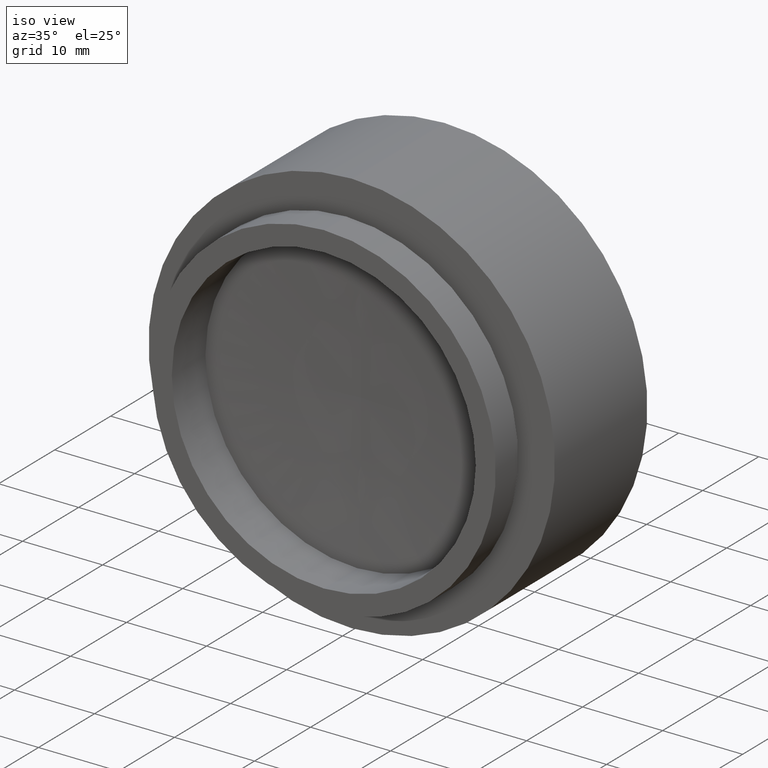
[diagram: clean part render]
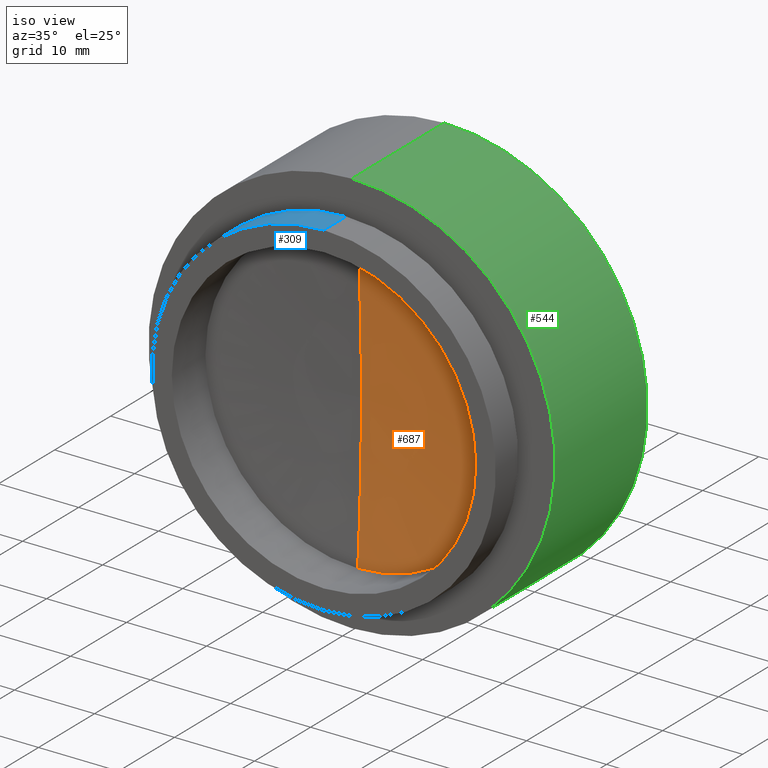
[diagram: same view with three faces highlighted in distinct colors, each labeled with its STEP entity id]
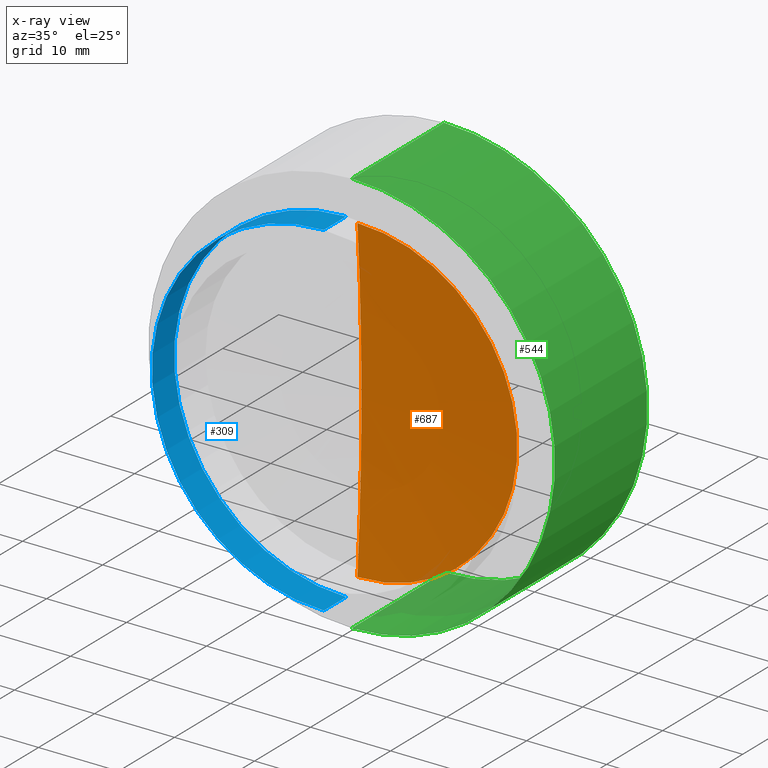
[diagram: x-ray of the same camera — body ghosted, the three highlighted faces saturated]
A machine part, iso view with three faces highlighted in distinct colors.
The next image is the same camera in x-ray (body ghosted, the three faces saturated) — at least one of them is partly hidden behind the body in this view.
Their STEP definitions:

[orange] entity #687 — the highlighted spherical surface has radius 275.373 mm.
#62 = CIRCLE ( 'NONE', #602, 275.3729999999999905 ) ;
#215 = DIRECTION ( 'NONE',  ( 1.224646799147353207E-16, -1.000000000000000000, 0.000000000000000000 ) ) ;
#232 = DIRECTION ( 'NONE',  ( 0.000000000000000000, 0.000000000000000000, -1.000000000000000000 ) ) ;
#271 = EDGE_CURVE ( 'NONE', #424, #716, #62, .T. ) ;
#419 = SPHERICAL_SURFACE ( 'NONE', #726, 275.3729999999999905 ) ;
#424 = VERTEX_POINT ( 'NONE', #685 ) ;
#486 = DIRECTION ( 'NONE',  ( -1.224646799147353207E-16, 1.000000000000000000, 0.000000000000000000 ) ) ;
#499 = ORIENTED_EDGE ( 'NONE', *, *, #552, .F. ) ;
#534 = DIRECTION ( 'NONE',  ( -1.000000000000000000, -1.224646799147353207E-16, -1.224646799147351975E-16 ) ) ;
#552 = EDGE_CURVE ( 'NONE', #424, #716, #1205, .T. ) ;
#602 = AXIS2_PLACEMENT_3D ( 'NONE', #1061, #534, #749 ) ;
#622 = CARTESIAN_POINT ( 'NONE',  ( -8.905217641199632439, -18.91880613057825400, 6.650363943474537187 ) ) ;
#684 = DIRECTION ( 'NONE',  ( 0.000000000000000000, 0.000000000000000000, 1.000000000000000000 ) ) ;
#685 = CARTESIAN_POINT ( 'NONE',  ( -8.905217641199635992, -18.91880613057825400, 46.65036394347453808 ) ) ;
#687 = ADVANCED_FACE ( 'NONE', ( #1130 ), #419, .F. ) ;
#716 = VERTEX_POINT ( 'NONE', #622 ) ;
#726 = AXIS2_PLACEMENT_3D ( 'NONE', #1035, #215, #232 ) ;
#749 = DIRECTION ( 'NONE',  ( 1.196912770807571307E-16, 0.000000000000000000, -1.000000000000000000 ) ) ;
#800 = CARTESIAN_POINT ( 'NONE',  ( -8.905217641199635992, -18.91880613057825400, 26.65036394347453808 ) ) ;
#1035 = CARTESIAN_POINT ( 'NONE',  ( -8.905217641199602241, -293.5645581985831996, 26.65036394347453808 ) ) ;
#1061 = CARTESIAN_POINT ( 'NONE',  ( -8.905217641199602241, -293.5645581985831996, 26.65036394347453808 ) ) ;
#1130 = FACE_OUTER_BOUND ( 'NONE', #1144, .T. ) ;
#1144 = EDGE_LOOP ( 'NONE', ( #499, #1197 ) ) ;
#1183 = AXIS2_PLACEMENT_3D ( 'NONE', #800, #486, #684 ) ;
#1197 = ORIENTED_EDGE ( 'NONE', *, *, #271, .T. ) ;
#1205 = CIRCLE ( 'NONE', #1183, 19.99999999999999645 ) ;

[blue] entity #309 — the highlighted cylindrical surface (partial cylindrical patch) has radius 21.5 mm, axis along (0, -1, 0).
#1 = ORIENTED_EDGE ( 'NONE', *, *, #1146, .T. ) ;
#28 = ORIENTED_EDGE ( 'NONE', *, *, #745, .F. ) ;
#48 = VERTEX_POINT ( 'NONE', #302 ) ;
#50 = DIRECTION ( 'NONE',  ( 0.000000000000000000, -1.000000000000000000, 0.000000000000000000 ) ) ;
#128 = ORIENTED_EDGE ( 'NONE', *, *, #1014, .T. ) ;
#139 = DIRECTION ( 'NONE',  ( 0.000000000000000000, -1.000000000000000000, 0.000000000000000000 ) ) ;
#240 = CARTESIAN_POINT ( 'NONE',  ( -8.905217641199669742, -24.91880613057825045, 26.65036394347453097 ) ) ;
#302 = CARTESIAN_POINT ( 'NONE',  ( -8.905217641199666190, -24.91880613057825045, 48.15036394347453097 ) ) ;
#309 = ADVANCED_FACE ( 'NONE', ( #1264 ), #843, .T. ) ;
#320 = DIRECTION ( 'NONE',  ( 0.000000000000000000, -1.000000000000000000, 0.000000000000000000 ) ) ;
#345 = EDGE_LOOP ( 'NONE', ( #28, #128, #1, #414 ) ) ;
#414 = ORIENTED_EDGE ( 'NONE', *, *, #1236, .F. ) ;
#485 = CARTESIAN_POINT ( 'NONE',  ( -8.905217641199669742, -24.91880613057825045, 5.150363943474532746 ) ) ;
#535 = VECTOR ( 'NONE', #894, 1000.000000000000000 ) ;
#556 = VERTEX_POINT ( 'NONE', #897 ) ;
#571 = CARTESIAN_POINT ( 'NONE',  ( -8.905217641199669742, -20.91880613057825045, 26.65036394347453097 ) ) ;
#583 = CIRCLE ( 'NONE', #663, 21.50000000000000000 ) ;
#625 = VERTEX_POINT ( 'NONE', #485 ) ;
#632 = DIRECTION ( 'NONE',  ( 0.000000000000000000, 0.000000000000000000, -1.000000000000000000 ) ) ;
#663 = AXIS2_PLACEMENT_3D ( 'NONE', #1056, #50, #1277 ) ;
#689 = LINE ( 'NONE', #1223, #535 ) ;
#724 = CIRCLE ( 'NONE', #775, 21.50000000000000000 ) ;
#734 = CARTESIAN_POINT ( 'NONE',  ( -8.905217641199666190, -20.91880613057825045, 48.15036394347453097 ) ) ;
#745 = EDGE_CURVE ( 'NONE', #765, #48, #839, .T. ) ;
#765 = VERTEX_POINT ( 'NONE', #734 ) ;
#775 = AXIS2_PLACEMENT_3D ( 'NONE', #571, #1198, #979 ) ;
#812 = CARTESIAN_POINT ( 'NONE',  ( -8.905217641199666190, -24.91880613057825045, 48.15036394347453097 ) ) ;
#839 = LINE ( 'NONE', #812, #1079 ) ;
#843 = CYLINDRICAL_SURFACE ( 'NONE', #961, 21.50000000000000000 ) ;
#894 = DIRECTION ( 'NONE',  ( 0.000000000000000000, -1.000000000000000000, 0.000000000000000000 ) ) ;
#897 = CARTESIAN_POINT ( 'NONE',  ( -8.905217641199669742, -20.91880613057825045, 5.150363943474532746 ) ) ;
#961 = AXIS2_PLACEMENT_3D ( 'NONE', #240, #139, #632 ) ;
#979 = DIRECTION ( 'NONE',  ( 0.000000000000000000, 0.000000000000000000, -1.000000000000000000 ) ) ;
#1014 = EDGE_CURVE ( 'NONE', #765, #556, #724, .T. ) ;
#1056 = CARTESIAN_POINT ( 'NONE',  ( -8.905217641199669742, -24.91880613057825045, 26.65036394347453097 ) ) ;
#1079 = VECTOR ( 'NONE', #320, 1000.000000000000000 ) ;
#1146 = EDGE_CURVE ( 'NONE', #556, #625, #689, .T. ) ;
#1198 = DIRECTION ( 'NONE',  ( 0.000000000000000000, -1.000000000000000000, 0.000000000000000000 ) ) ;
#1223 = CARTESIAN_POINT ( 'NONE',  ( -8.905217641199669742, -24.91880613057825045, 5.150363943474532746 ) ) ;
#1236 = EDGE_CURVE ( 'NONE', #48, #625, #583, .T. ) ;
#1264 = FACE_OUTER_BOUND ( 'NONE', #345, .T. ) ;
#1277 = DIRECTION ( 'NONE',  ( 0.000000000000000000, 0.000000000000000000, -1.000000000000000000 ) ) ;

[green] entity #544 — the highlighted cylindrical surface (partial cylindrical patch) has radius 25.4 mm, axis along (0, -1, 0).
#60 = ORIENTED_EDGE ( 'NONE', *, *, #1043, .F. ) ;
#88 = DIRECTION ( 'NONE',  ( 0.000000000000000000, -1.000000000000000000, 0.000000000000000000 ) ) ;
#92 = DIRECTION ( 'NONE',  ( 0.000000000000000000, -1.000000000000000000, 0.000000000000000000 ) ) ;
#126 = ORIENTED_EDGE ( 'NONE', *, *, #1087, .F. ) ;
#178 = VERTEX_POINT ( 'NONE', #505 ) ;
#181 = CARTESIAN_POINT ( 'NONE',  ( -8.905217641199666190, -24.91880613057825045, 52.05036394347452955 ) ) ;
#257 = ORIENTED_EDGE ( 'NONE', *, *, #591, .T. ) ;
#286 = DIRECTION ( 'NONE',  ( 0.000000000000000000, -1.000000000000000000, 0.000000000000000000 ) ) ;
#305 = VERTEX_POINT ( 'NONE', #1150 ) ;
#318 = ORIENTED_EDGE ( 'NONE', *, *, #495, .T. ) ;
#366 = VERTEX_POINT ( 'NONE', #1156 ) ;
#380 = CIRCLE ( 'NONE', #940, 25.39999999999999858 ) ;
#466 = VERTEX_POINT ( 'NONE', #1018 ) ;
#469 = DIRECTION ( 'NONE',  ( 0.000000000000000000, 0.000000000000000000, -1.000000000000000000 ) ) ;
#478 = DIRECTION ( 'NONE',  ( 0.000000000000000000, 0.000000000000000000, -1.000000000000000000 ) ) ;
#494 = CARTESIAN_POINT ( 'NONE',  ( -8.905217641199669742, -3.418806130578253111, 26.65036394347453097 ) ) ;
#495 = EDGE_CURVE ( 'NONE', #305, #466, #1086, .T. ) ;
#505 = CARTESIAN_POINT ( 'NONE',  ( -8.905217641199669742, -19.91880613057825045, 1.250363943474531947 ) ) ;
#544 = ADVANCED_FACE ( 'NONE', ( #1000 ), #1092, .T. ) ;
#557 = AXIS2_PLACEMENT_3D ( 'NONE', #494, #88, #478 ) ;
#574 = DIRECTION ( 'NONE',  ( 0.000000000000000000, -1.000000000000000000, 0.000000000000000000 ) ) ;
#591 = EDGE_CURVE ( 'NONE', #366, #305, #617, .T. ) ;
#598 = DIRECTION ( 'NONE',  ( 0.000000000000000000, 0.000000000000000000, -1.000000000000000000 ) ) ;
#617 = CIRCLE ( 'NONE', #557, 25.39999999999999858 ) ;
#623 = EDGE_LOOP ( 'NONE', ( #257, #318, #126, #60 ) ) ;
#723 = VECTOR ( 'NONE', #574, 1000.000000000000000 ) ;
#790 = CARTESIAN_POINT ( 'NONE',  ( -8.905217641199669742, -24.91880613057825045, 26.65036394347453097 ) ) ;
#903 = LINE ( 'NONE', #1216, #1077 ) ;
#940 = AXIS2_PLACEMENT_3D ( 'NONE', #1308, #92, #469 ) ;
#1000 = FACE_OUTER_BOUND ( 'NONE', #623, .T. ) ;
#1018 = CARTESIAN_POINT ( 'NONE',  ( -8.905217641199666190, -19.91880613057825045, 52.05036394347452955 ) ) ;
#1043 = EDGE_CURVE ( 'NONE', #366, #178, #903, .T. ) ;
#1077 = VECTOR ( 'NONE', #286, 1000.000000000000000 ) ;
#1086 = LINE ( 'NONE', #181, #723 ) ;
#1087 = EDGE_CURVE ( 'NONE', #178, #466, #380, .T. ) ;
#1092 = CYLINDRICAL_SURFACE ( 'NONE', #1094, 25.39999999999999858 ) ;
#1094 = AXIS2_PLACEMENT_3D ( 'NONE', #790, #1304, #598 ) ;
#1150 = CARTESIAN_POINT ( 'NONE',  ( -8.905217641199666190, -3.418806130578253111, 52.05036394347452955 ) ) ;
#1156 = CARTESIAN_POINT ( 'NONE',  ( -8.905217641199669742, -3.418806130578253111, 1.250363943474531947 ) ) ;
#1216 = CARTESIAN_POINT ( 'NONE',  ( -8.905217641199669742, -24.91880613057825045, 1.250363943474531947 ) ) ;
#1304 = DIRECTION ( 'NONE',  ( 0.000000000000000000, -1.000000000000000000, 0.000000000000000000 ) ) ;
#1308 = CARTESIAN_POINT ( 'NONE',  ( -8.905217641199669742, -19.91880613057825045, 26.65036394347453097 ) ) ;